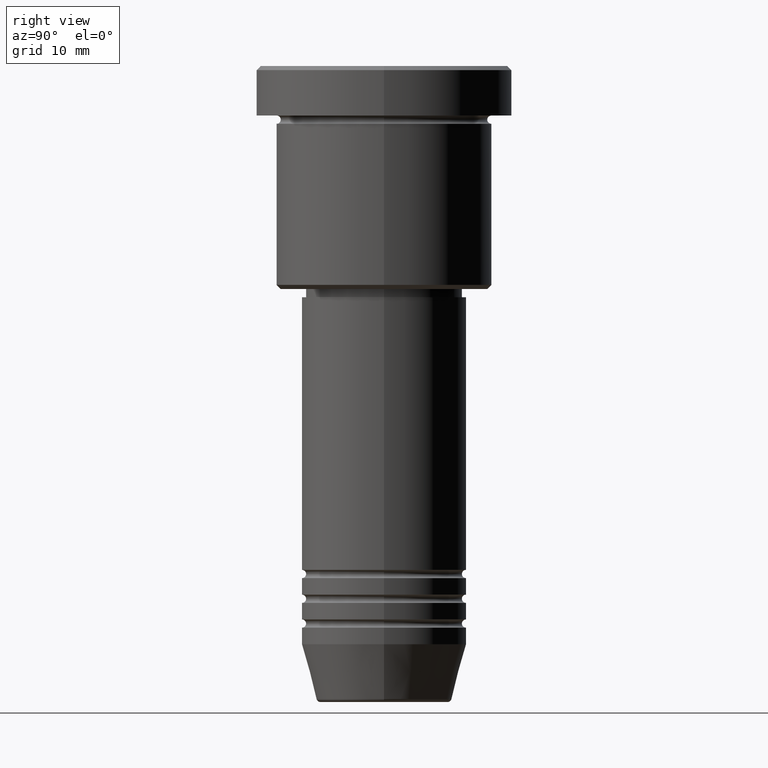
[diagram: clean part render]
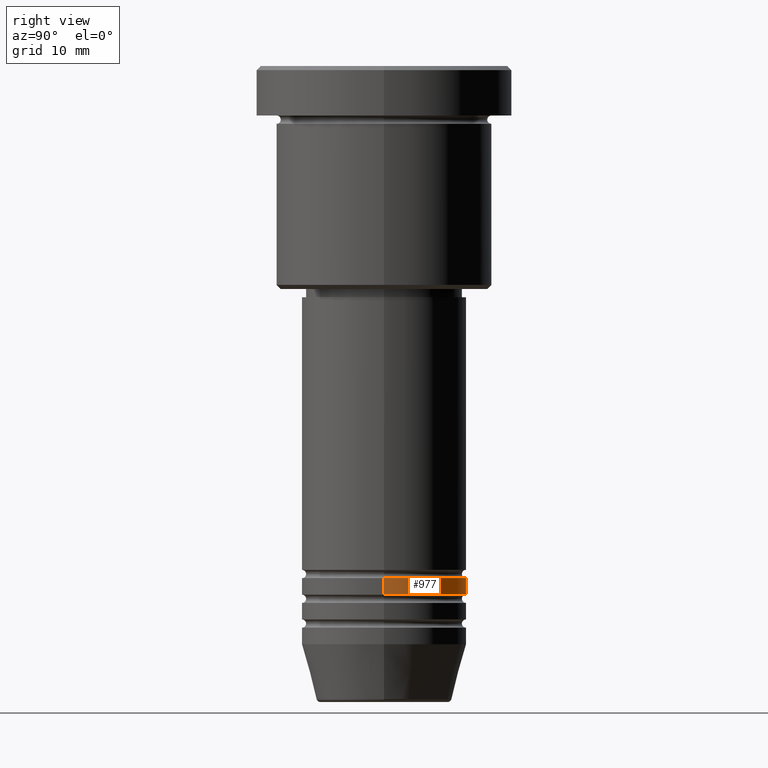
[diagram: same view with one face highlighted and labeled with its STEP entity id]
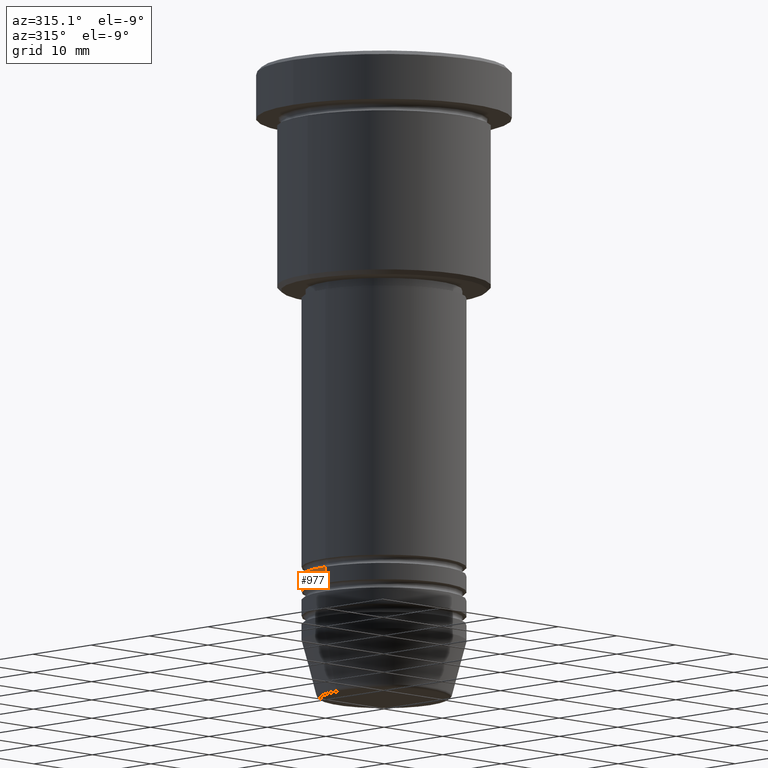
[diagram: same view with one face highlighted and labeled with its STEP entity id]
A machine part, right view. The second image highlights one B-rep face of the part: STEP entity #977.
A second angle (auxiliary view) of the same face is appended — the face is thin or edge-on in the first view.
In plain terms, the highlighted cylindrical surface (partial cylindrical patch) has radius 10 mm, axis along (-0, -0, 1).
Its self-contained STEP definition (entity closure, byte-faithful):
#20 = CARTESIAN_POINT ( 'NONE',  ( 0.000000000000000000, 0.000000000000000000, -63.99999999999998579 ) ) ;
#43 = CARTESIAN_POINT ( 'NONE',  ( 0.000000000000000000, 0.000000000000000000, -61.99999999999998579 ) ) ;
#46 = CARTESIAN_POINT ( 'NONE',  ( 0.000000000000000000, 0.000000000000000000, 0.000000000000000000 ) ) ;
#113 = ORIENTED_EDGE ( 'NONE', *, *, #864, .F. ) ;
#167 = AXIS2_PLACEMENT_3D ( 'NONE', #20, #1113, #668 ) ;
#204 = VECTOR ( 'NONE', #1028, 1000.000000000000000 ) ;
#249 = DIRECTION ( 'NONE',  ( 1.000000000000000000, 0.000000000000000000, 0.000000000000000000 ) ) ;
#255 = ORIENTED_EDGE ( 'NONE', *, *, #452, .T. ) ;
#296 = CARTESIAN_POINT ( 'NONE',  ( -10.00000000000000000, 1.224646799147353256E-15, 0.000000000000000000 ) ) ;
#303 = ORIENTED_EDGE ( 'NONE', *, *, #540, .F. ) ;
#327 = DIRECTION ( 'NONE',  ( -0.000000000000000000, -0.000000000000000000, 1.000000000000000000 ) ) ;
#369 = LINE ( 'NONE', #296, #204 ) ;
#395 = DIRECTION ( 'NONE',  ( 1.000000000000000000, 0.000000000000000000, 0.000000000000000000 ) ) ;
#413 = DIRECTION ( 'NONE',  ( -0.000000000000000000, -0.000000000000000000, 1.000000000000000000 ) ) ;
#445 = EDGE_CURVE ( 'NONE', #740, #747, #369, .T. ) ;
#452 = EDGE_CURVE ( 'NONE', #733, #740, #1093, .T. ) ;
#460 = CARTESIAN_POINT ( 'NONE',  ( -10.00000000000000000, 1.224646799147353256E-15, -61.99999999999998579 ) ) ;
#509 = CARTESIAN_POINT ( 'NONE',  ( 10.00000000000000000, 0.000000000000000000, 0.000000000000000000 ) ) ;
#540 = EDGE_CURVE ( 'NONE', #923, #747, #618, .T. ) ;
#554 = EDGE_LOOP ( 'NONE', ( #255, #1165, #303, #113 ) ) ;
#585 = CYLINDRICAL_SURFACE ( 'NONE', #1006, 10.00000000000000000 ) ;
#591 = CARTESIAN_POINT ( 'NONE',  ( 10.00000000000000000, 0.000000000000000000, -61.99999999999998579 ) ) ;
#618 = CIRCLE ( 'NONE', #1112, 10.00000000000000000 ) ;
#668 = DIRECTION ( 'NONE',  ( 1.000000000000000000, 0.000000000000000000, 0.000000000000000000 ) ) ;
#733 = VERTEX_POINT ( 'NONE', #879 ) ;
#740 = VERTEX_POINT ( 'NONE', #951 ) ;
#747 = VERTEX_POINT ( 'NONE', #460 ) ;
#864 = EDGE_CURVE ( 'NONE', #733, #923, #981, .T. ) ;
#879 = CARTESIAN_POINT ( 'NONE',  ( 10.00000000000000000, 0.000000000000000000, -63.99999999999998579 ) ) ;
#923 = VERTEX_POINT ( 'NONE', #591 ) ;
#951 = CARTESIAN_POINT ( 'NONE',  ( -10.00000000000000000, 1.224646799147353256E-15, -63.99999999999998579 ) ) ;
#977 = ADVANCED_FACE ( 'NONE', ( #1051 ), #585, .T. ) ;
#981 = LINE ( 'NONE', #509, #1124 ) ;
#1006 = AXIS2_PLACEMENT_3D ( 'NONE', #46, #327, #249 ) ;
#1028 = DIRECTION ( 'NONE',  ( -0.000000000000000000, -0.000000000000000000, 1.000000000000000000 ) ) ;
#1051 = FACE_OUTER_BOUND ( 'NONE', #554, .T. ) ;
#1093 = CIRCLE ( 'NONE', #167, 10.00000000000000000 ) ;
#1112 = AXIS2_PLACEMENT_3D ( 'NONE', #43, #1137, #395 ) ;
#1113 = DIRECTION ( 'NONE',  ( -0.000000000000000000, -0.000000000000000000, 1.000000000000000000 ) ) ;
#1124 = VECTOR ( 'NONE', #413, 1000.000000000000000 ) ;
#1137 = DIRECTION ( 'NONE',  ( -0.000000000000000000, -0.000000000000000000, 1.000000000000000000 ) ) ;
#1165 = ORIENTED_EDGE ( 'NONE', *, *, #445, .T. ) ;